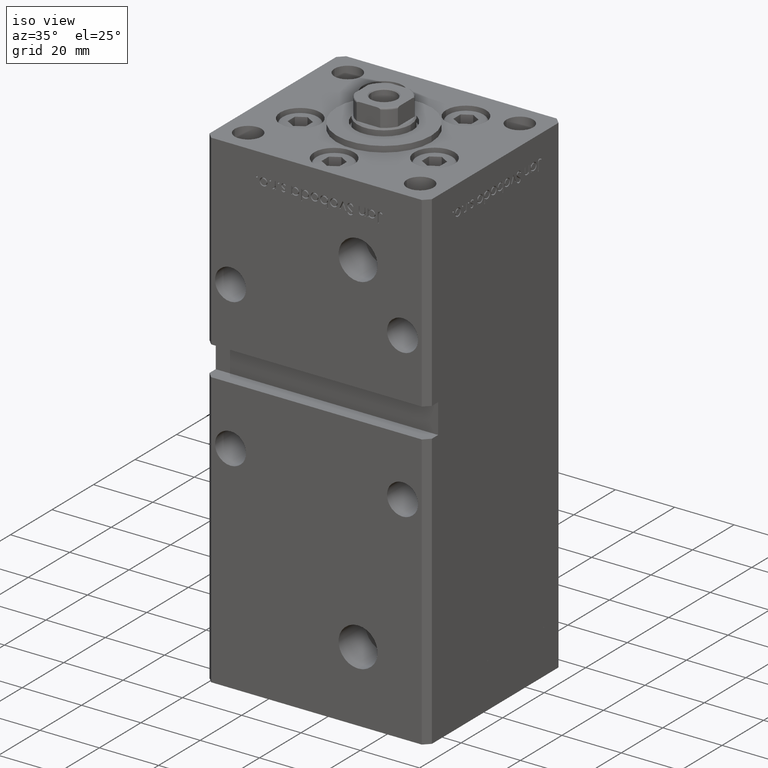
[diagram: clean part render]
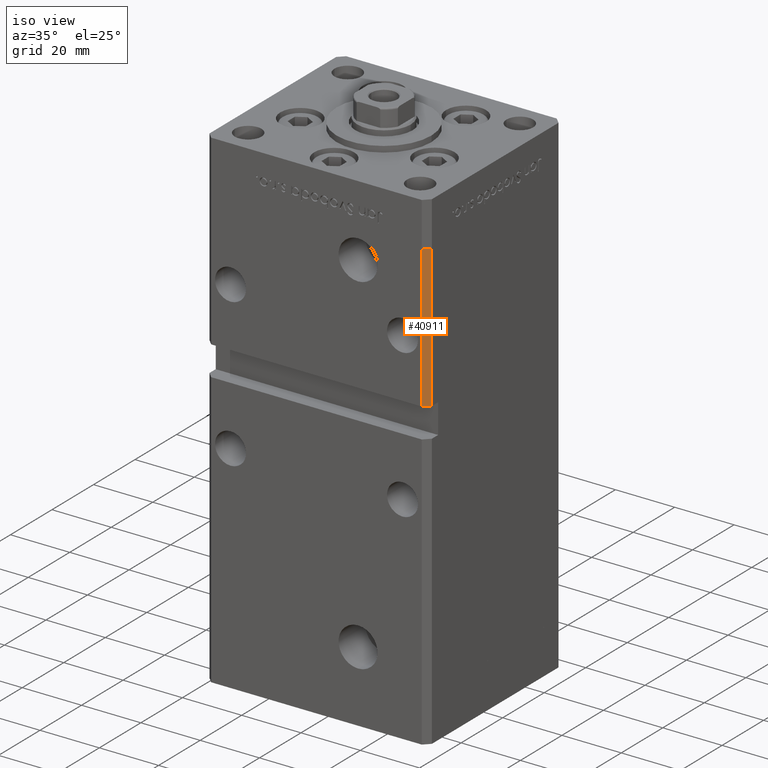
[diagram: same view with one face highlighted and labeled with its STEP entity id]
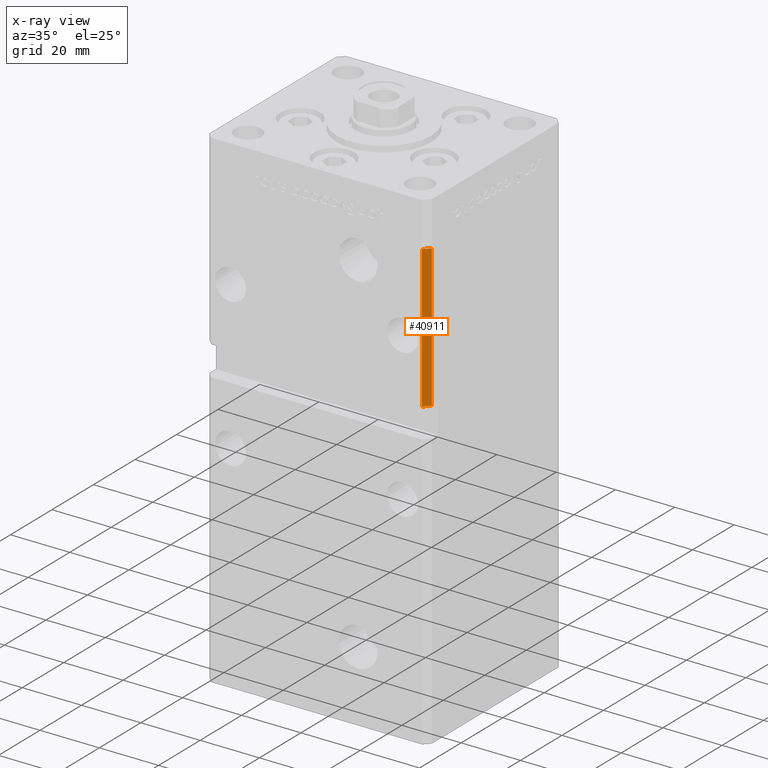
[diagram: x-ray of the same camera — body ghosted, the highlighted face saturated]
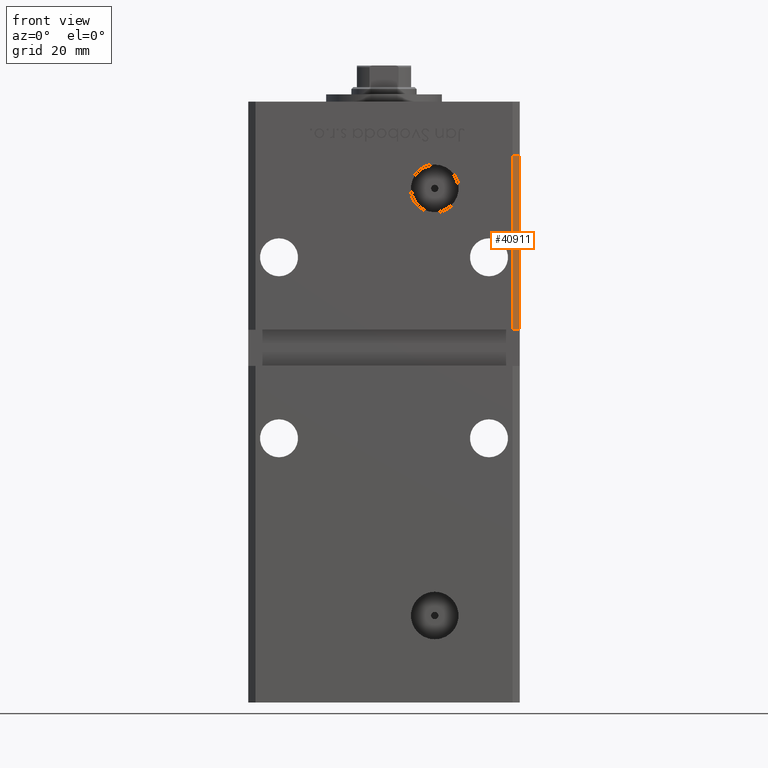
[diagram: same view with one face highlighted and labeled with its STEP entity id]
A machine part, iso view. The second image highlights one B-rep face of the part: STEP entity #40911.
The next image is the same camera in x-ray: the body ghosted, the highlighted face saturated — about 0% of this face is hidden behind the body in this view.
A second angle (front view) of the same face is appended — the face is thin or edge-on in the first view.
In plain terms, the highlighted planar face has unit normal (0.7071, -0.7071, 0).
Its self-contained STEP definition (entity closure, byte-faithful):
#2704 = DIRECTION ( 'NONE',  ( -0.000000000000000000, -0.000000000000000000, -1.000000000000000000 ) ) ;
#3406 = CARTESIAN_POINT ( 'NONE',  ( 35.49999999999999289, -32.50000000000000000, 88.00000000000002842 ) ) ;
#4330 = DIRECTION ( 'NONE',  ( -0.7071067811865474617, -0.7071067811865474617, 0.000000000000000000 ) ) ;
#5843 = AXIS2_PLACEMENT_3D ( 'NONE', #13020, #45557, #37739 ) ;
#7316 = VERTEX_POINT ( 'NONE', #27085 ) ;
#11549 = EDGE_CURVE ( 'NONE', #42114, #42266, #13680, .T. ) ;
#12903 = EDGE_LOOP ( 'NONE', ( #30717, #40723, #19831, #36497 ) ) ;
#13020 = CARTESIAN_POINT ( 'NONE',  ( 37.49999999999999289, -30.50000000000000000, 136.0000000000000000 ) ) ;
#13680 = LINE ( 'NONE', #42183, #17192 ) ;
#15608 = EDGE_CURVE ( 'NONE', #7316, #28404, #16433, .T. ) ;
#16433 = LINE ( 'NONE', #45429, #48261 ) ;
#17192 = VECTOR ( 'NONE', #33327, 1000.000000000000114 ) ;
#19593 = VECTOR ( 'NONE', #40751, 1000.000000000000000 ) ;
#19831 = ORIENTED_EDGE ( 'NONE', *, *, #15608, .T. ) ;
#25638 = FACE_OUTER_BOUND ( 'NONE', #12903, .T. ) ;
#27085 = CARTESIAN_POINT ( 'NONE',  ( 37.49999999999999289, -30.50000000000000000, 136.0000000000000000 ) ) ;
#28404 = VERTEX_POINT ( 'NONE', #46913 ) ;
#29673 = PLANE ( 'NONE',  #5843 ) ;
#30717 = ORIENTED_EDGE ( 'NONE', *, *, #11549, .F. ) ;
#33327 = DIRECTION ( 'NONE',  ( -0.7071067811865474617, -0.7071067811865474617, 0.000000000000000000 ) ) ;
#34096 = EDGE_CURVE ( 'NONE', #28404, #42266, #36708, .T. ) ;
#34439 = CARTESIAN_POINT ( 'NONE',  ( 37.49999999999999289, -30.50000000000000000, 136.0000000000000000 ) ) ;
#36497 = ORIENTED_EDGE ( 'NONE', *, *, #34096, .T. ) ;
#36708 = LINE ( 'NONE', #45560, #19593 ) ;
#37483 = EDGE_CURVE ( 'NONE', #7316, #42114, #39518, .T. ) ;
#37739 = DIRECTION ( 'NONE',  ( 0.7071067811865474617, 0.7071067811865474617, 0.000000000000000000 ) ) ;
#39518 = LINE ( 'NONE', #34439, #40993 ) ;
#40723 = ORIENTED_EDGE ( 'NONE', *, *, #37483, .F. ) ;
#40751 = DIRECTION ( 'NONE',  ( -0.000000000000000000, -0.000000000000000000, -1.000000000000000000 ) ) ;
#40911 = ADVANCED_FACE ( 'NONE', ( #25638 ), #29673, .T. ) ;
#40993 = VECTOR ( 'NONE', #2704, 1000.000000000000000 ) ;
#42114 = VERTEX_POINT ( 'NONE', #42655 ) ;
#42183 = CARTESIAN_POINT ( 'NONE',  ( 37.49999999999999289, -30.50000000000000000, 88.00000000000002842 ) ) ;
#42266 = VERTEX_POINT ( 'NONE', #3406 ) ;
#42655 = CARTESIAN_POINT ( 'NONE',  ( 37.49999999999998579, -30.50000000000000355, 88.00000000000002842 ) ) ;
#45429 = CARTESIAN_POINT ( 'NONE',  ( 37.49999999999999289, -30.50000000000000000, 136.0000000000000000 ) ) ;
#45557 = DIRECTION ( 'NONE',  ( 0.7071067811865475727, -0.7071067811865475727, 0.000000000000000000 ) ) ;
#45560 = CARTESIAN_POINT ( 'NONE',  ( 35.49999999999999289, -32.50000000000000000, 136.0000000000000000 ) ) ;
#46913 = CARTESIAN_POINT ( 'NONE',  ( 35.49999999999999289, -32.50000000000000000, 136.0000000000000000 ) ) ;
#48261 = VECTOR ( 'NONE', #4330, 1000.000000000000114 ) ;